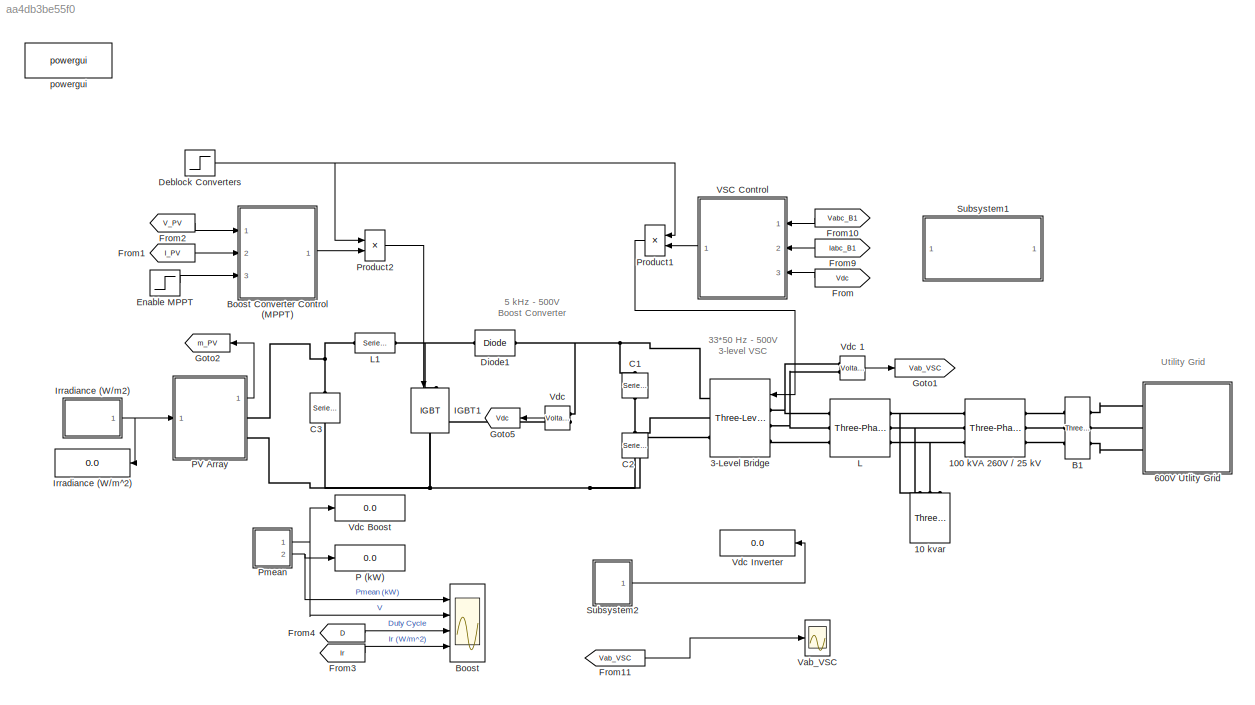
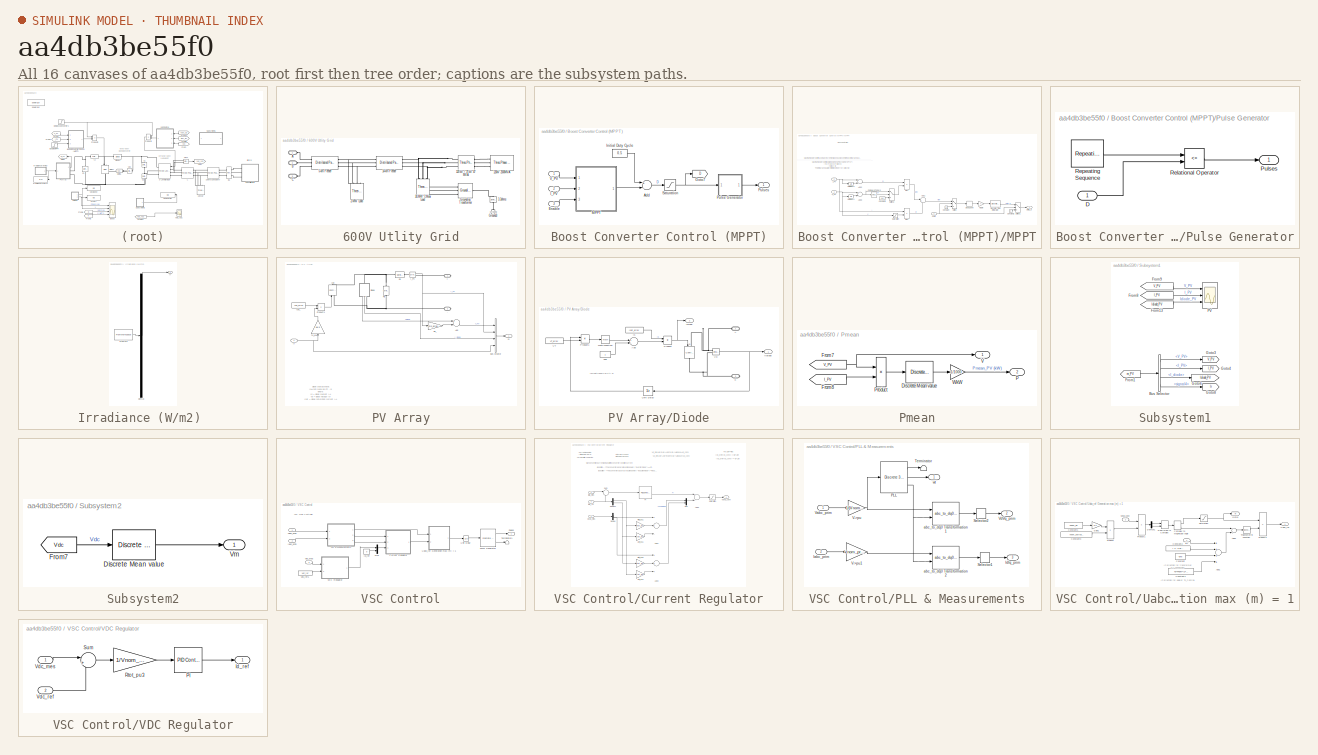
[diagram: thumbnail index - all 16 canvases of the model, root first then tree order]
MODEL slx_aa4db3be55f0
KIND model
CONFIG AbsTol = auto
CONFIG FixedStep = auto
CONFIG MaxStep = auto
CONFIG MinStep = auto
CONFIG PreLoadFcn = Ts_Power=1e-6\nTs_Control=100e-6
CONFIG RelTol = 1e-3
CONFIG SampleTimeConstraint = Unconstrained
CONFIG Solver = FixedStepDiscrete
CONFIG SolverMode = SingleTasking
CONFIG SolverName = FixedStepDiscrete
CONFIG StartTime = 0.0
CONFIG StopTime = 3
BLOCK [Reference] 10 kvar  REF=powerlib/Elements/Three-Phase
Series RLC Load
  ActivePower = 10e3/100
  AttributesFormatString = \n
  CapacitivePower = 10e3
  Configuration = Y (grounded)
  InductivePower = 0
  LConnTagsString = A|B|C
  LoadType = constant Z
  Measurements = None
  NominalFrequency = 60
  NominalVoltage = 260
  Ports = [0, 0, 0, 0, 0, 3]
  SourceBlock = powerlib/Elements/Three-Phase\nSeries RLC Load
  SourceType = Three-Phase Series RLC Load
BLOCK [Reference] 100 kVA 260V // 25 kV  REF=powerlib/Elements/Three-Phase
Transformer
(Two Windings)
  AttributesFormatString = \n
  BreakLoop = off
  CoreType = Three single-phase transformers
  DataFile = 'hysteresis'
  DataType = off
  Hysteresis = off
  InitialFluxes = [ 0.8 , -0.8 , 0.7 ]
  L0 = 0.5
  Lm = 500
  Measurements = None
  MoreParameters = off
  NominalPower = [100e3 , 60 ]
  Ports = [0, 0, 0, 0, 0, 3, 3]
  Rm = 500
  Saturation = [ 0,0 ; 0.0024,1.2 ; 1.0,1.52 ]
  SetInitialFlux = off
  SetSaturation = off
  SourceBlock = powerlib/Elements/Three-Phase\nTransformer\n(Two Windings)
  SourceType = Three-Phase Transformer (Two Windings)
  TransfoNumber = 0
  UNITS = pu
  Winding1 = [ 25e3 , 0.001 , 0.03 ]
  Winding1Connection = Yg
  Winding2 = [ 260 , 0.001 , 0.03 ]
  Winding2Connection = Delta (D1)
BLOCK [Reference] 3-Level Bridge  REF=powerlib/Power
Electronics/Three-Level Bridge
  Arms = 3
  AttributesFormatString = \n
  Device = IGBT / Diodes
  ForwardVoltages = [  0  0 ]
  Measurements = None
  Ports = [1, 0, 0, 0, 0, 3, 3]
  Ron = 0.2e-3
  SbubberCapacitance = inf
  SnubberResistance = 1e6
  SourceBlock = powerlib/Power\nElectronics/Three-Level Bridge
  SourceType = Three-Level Bridge
BLOCK [SubSystem] 600V Utlity Grid
  Ports = [0, 0, 0, 0, 0, 3]
  RequestExecContextInheritance = off
BLOCK [Reference] 600V Utlity Grid/120 kV // 25 kV 47 MVA  REF=powerlib/Elements/Three-Phase
Transformer
(Two Windings)
  AttributesFormatString = \n
  BreakLoop = off
  CoreType = Three single-phase transformers
  DataFile = 'basic_model'
  DataType = off
  Hysteresis = off
  InitialFluxes = [ 0.8 , -0.8 , 0.7 ]
  L0 = 0.5
  Lm = 500
  Measurements = None
  MoreParameters = off
  NominalPower = [47e6 60 ]
  Ports = [0, 0, 0, 0, 0, 3, 3]
  Rm = 500
  Saturation = [ 0,0  ;  0.005,1.2  ;  1.0,1.4 ]
  SetInitialFlux = off
  SetSaturation = off
  SourceBlock = powerlib/Elements/Three-Phase\nTransformer\n(Two Windings)
  SourceType = Three-Phase Transformer (Two Windings)
  TransfoNumber = 0
  UNITS = pu
  Winding1 = [ 120e3  0.08/30   0.08 ]
  Winding1Connection = Yg
  Winding2 = [ 25e3  0.08/30  0.08]
  Winding2Connection = Delta (D1)
BLOCK [Reference] 600V Utlity Grid/120kV 2500MVA  REF=powerlib/Electrical
Sources/Three-Phase Source
  BaseVoltage = 120e3
  BusType = swing
  Frequency = 60
  Inductance = 16.58e-3
  InternalConnection = Yg
  PhaseAngle = 0
  Ports = [0, 0, 0, 0, 0, 0, 3]
  Pref = 0
  Qmax = inf
  Qmin = -inf
  Qref = 0
  Resistance = 0.8929
  ShortCircuitLevel = 2500e6
  SourceBlock = powerlib/Electrical\nSources/Three-Phase Source
  SourceType = Three-Phase Source
  SpecifyImpedance = on
  Voltage = 120e3
  XRratio = 7
BLOCK [Reference] 600V Utlity Grid/14-km Feeder  REF=powerlib/Elements/Distributed Parameters Line
  Capacitance = [11.33e-009 5.01e-009]
  Frequency = 60
  I1 = ones(3,3)
  I2 = ones(3,3)
  Inductance = [1.05e-3 3.32e-3]
  Length = 14
  Measurements = None
  Phases = 3
  Ports = [0, 0, 0, 0, 0, 3, 3]
  Resistance = [0.1153 0.413]
  SourceBlock = powerlib/Elements/Distributed Parameters Line
  SourceType = Distributed Parameters Line
  V1 = ones(3,3)
  V2 = ones(3,3)
  nHarmo = 1
  x1 = [-5.8e-05 -2.66241288531843e-10 0 0;-5.7e-05 -2.65838779606365e-10 0 0;-5.6e-05 -2.65436232899268e-10 0 0;-5.5e-05 -2.65033648467762e-10 0 0;-5.4e-05 -2.64631026369064e-10 0 0;-5.3e-05 -2.64228366660395e-10 0 0;-5.2e-05 -2.63825669398983e-10 0 0;-5.1e-05 -2.6342293464206e-10 0 0;-5e-05 -2.63020162446862e-10 0 0;-4.9e-05 -2.62617352870634e-10 -3790.5008820905 -24060.9143986523;-4.8e-05 -2.622145059...<+3159ch>
  x2 = [-5.8e-05 -2.19441538908334e-10 0 0;-5.7e-05 -2.19014640734556e-10 0 0;-5.6e-05 -2.18587711433914e-10 0 0;-5.5e-05 -2.18160751067083e-10 0 0;-5.4e-05 -2.17733759694744e-10 0 0;-5.3e-05 -2.17306737377582e-10 0 0;-5.2e-05 -2.16879684176287e-10 0 0;-5.1e-05 -2.16452600151551e-10 0 0;-5e-05 -2.16025485364074e-10 0 0;-4.9e-05 -2.15598339874557e-10 -3379.33798532399 -24243.9018981772;-4.8e-05 -2.1517116...<+3159ch>
  x3 = [-5.8e-05 -2.83245009916326e-12 0 0;-5.7e-05 -2.83025796249545e-12 0 0;-5.6e-05 -2.82806542358487e-12 0 0;-5.5e-05 -2.82587248274312e-12 0 0;-5.4e-05 -2.82367914028187e-12 0 0;-5.3e-05 -2.82148539651284e-12 0 0;-5.2e-05 -2.81929125174781e-12 0 0;-5.1e-05 -2.81709670629862e-12 0 0;-5e-05 -2.81490176047716e-12 0 0;-4.9e-05 -2.81270641459538e-12 -23.610210034582 -155.666879550889;-4.8e-05 -2.81051066...<+3151ch>
  x4 = [-5.8e-05 1.99167322087456e-12 0 0;-5.7e-05 1.99117155346646e-12 0 0;-5.6e-05 1.99066960306846e-12 0 0;-5.5e-05 1.99016736975192e-12 0 0;-5.4e-05 1.98966485358822e-12 0 0;-5.3e-05 1.98916205464876e-12 0 0;-5.2e-05 1.98865897300502e-12 0 0;-5.1e-05 1.98815560872849e-12 0 0;-5e-05 1.9876519618907e-12 0 0;-4.9e-05 1.98714803256324e-12 -1.28892375628843 -2.16547060902882;-4.8e-05 1.98664382081773e-12 ...<+3102ch>
  x5 = 5.70973484498186e-05
BLOCK [Reference] 600V Utlity Grid/2-MW Load  REF=powerlib/Elements/Three-Phase
Parallel RLC Load
  ActivePower = 2e6
  AttributesFormatString = \n
  CapacitivePower = 0
  Configuration = Y (grounded)
  InductivePower = 0
  LConnTagsString = A|B|C
  LoadType = constant Z
  Measurements = None
  NominalFrequency = 60
  NominalVoltage = 25e3
  Ports = [0, 0, 0, 0, 0, 3]
  SourceBlock = powerlib/Elements/Three-Phase\nParallel RLC Load
  SourceType = Three-Phase Parallel RLC Load
BLOCK [Reference] 600V Utlity Grid/3.3ohms   REF=powerlib/Elements/Series RLC Branch
  BranchType = R
  Capacitance = []
  Inductance = []
  InitialCurrent = 0
  InitialVoltage = 0
  LConnTagsString = __new0
  Measurements = None
  Ports = [0, 0, 0, 0, 0, 1, 1]
  RConnTagsString = __new0
  Resistance = 3.3
  SetiL0 = off
  Setx0 = off
  SourceBlock = powerlib/Elements/Series RLC Branch
  SourceType = Series RLC Branch
BLOCK [Reference] 600V Utlity Grid/30-MW 2-Mvar Load  REF=powerlib/Elements/Three-Phase
Parallel RLC Load
  ActivePower = 30e6
  AttributesFormatString = \n
  CapacitivePower = 0
  Configuration = Y (grounded)
  InductivePower = 2e6
  LConnTagsString = A|B|C
  LoadType = constant Z
  Measurements = None
  NominalFrequency = 60
  NominalVoltage = 25e3
  Ports = [0, 0, 0, 0, 0, 3]
  SourceBlock = powerlib/Elements/Three-Phase\nParallel RLC Load
  SourceType = Three-Phase Parallel RLC Load
BLOCK [Reference] 600V Utlity Grid/5-km Feeder  REF=powerlib/Elements/Distributed Parameters Line
  Capacitance = [11.33e-009 5.01e-009]
  Frequency = 60
  I1 = ones(3,3)
  I2 = ones(3,3)
  Inductance = [1.05e-3 3.32e-3]
  Length = 5
  Measurements = None
  Phases = 3
  Ports = [0, 0, 0, 0, 0, 3, 3]
  Resistance = [0.1153 0.413]
  SourceBlock = powerlib/Elements/Distributed Parameters Line
  SourceType = Distributed Parameters Line
  V1 = ones(3,3)
  V2 = ones(3,3)
  nHarmo = 1
  x1 = [-2.1e-05 -2.5034227216243e-10 -3536.88834563299 -24100.782456778;-2e-05 -2.49941829422639e-10 -3527.80231357941 -24102.1141196103;-1.9e-05 -2.4954135116054e-10 -3518.71578014645 -24103.4423569946;-1.8e-05 -2.49140837433051e-10 -3509.6287466255 -24104.7671687422;-1.7e-05 -2.48740288297092e-10 -3500.54121430803 -24106.0885546649;-1.6e-05 -2.4833970380959e-10 -3491.45318448559 -24107.4065145747;-1.5...<+978ch>
  x2 = [-2.1e-05 -2.51338141059124e-10 -3536.31339561922 -24099.5847724471;-2e-05 -2.50933586634924e-10 -3527.22781512284 -24100.9162186135;-1.9e-05 -2.50528996547465e-10 -3518.14173332873 -24102.2442395021;-1.8e-05 -2.50124370854249e-10 -3509.05515152821 -24103.5688349243;-1.7e-05 -2.49719709612781e-10 -3499.9680710127 -24104.8900046919;-1.6e-05 -2.49315012880574e-10 -3490.88049307368 -24106.2077486169;...<+980ch>
  x3 = [-2.1e-05 -2.36505659627167e-12 -11.2236902755013 -79.1234381044686;-2e-05 -2.36496717365722e-12 -11.1938606452144 -79.1276637133157;-1.9e-05 -2.36487741492819e-12 -11.1640294240303 -79.1318780763571;-1.8e-05 -2.36478732009734e-12 -11.1341966161886 -79.1360811929938;-1.7e-05 -2.36469688917747e-12 -11.1043622259293 -79.1402730626285;-1.6e-05 -2.36460612218143e-12 -11.0745262574924 -79.1444536846655...<+981ch>
  x4 = [-2.1e-05 7.7440198490703e-13 -12.4922083172047 -78.9091123636771;-2e-05 7.7469853203757e-13 -12.4624593956743 -78.9138162077783;-1.9e-05 7.74994969066172e-13 -12.4327087029504 -78.9185088364664;-1.8e-05 7.75291295950704e-13 -12.4029562432614 -78.9231902490744;-1.7e-05 7.75587512649053e-13 -12.3732020208357 -78.9278604449369;-1.6e-05 7.7588361911912e-13 -12.3434460399021 -78.9325194233902;-1.5e-05...<+959ch>
  x5 = 2.03919101606495e-05
BLOCK [PMIOPort] 600V Utlity Grid/A
  Port = 1
  Side = Left
BLOCK [PMIOPort] 600V Utlity Grid/B
  Port = 2
  Side = Left
BLOCK [PMIOPort] 600V Utlity Grid/C
  Port = 3
  Side = Left
BLOCK [Reference] 600V Utlity Grid/Ground3  REF=powerlib/Elements/Ground
  AttributesFormatString = \n
  LConnTagsString = a
  Ports = [0, 0, 0, 0, 0, 1]
  SourceBlock = powerlib/Elements/Ground
  SourceType = Ground
BLOCK [Reference] 600V Utlity Grid/Grounding Transformer   REF=powerlib/Elements/Grounding
Transformer 
  MagnetizationBranch_SI = [1041.7 3.927e+005]
  MagnetizationBranch_pu = [500 500]
  Measurements = None
  NominalPower = [100e6   60]
  NominalVoltage = 25e3
  Ports = [0, 0, 0, 0, 0, 3, 1]
  SourceBlock = powerlib/Elements/Grounding\nTransformer
  SourceType = Grounding Transformer
  UNITS = pu
  ZeroSequenceImpedance_SI = [0.052083 589.05]
  ZeroSequenceImpedance_pu = [0.025 0.75]
BLOCK [Reference] B1  REF=powerlib/Measurements/Three-Phase
V-I Measurement
  CurrentMeasurement = yes
  Ipu = off
  LabelI = Iabc_B1
  LabelV = Vabc_B1
  OutputType = Magnitude
  PSBequivalent = 0
  Pbase = 100e6
  PhasorSimulation = off
  Ports = [0, 0, 0, 0, 0, 3, 3]
  SetLabelI = on
  SetLabelV = on
  SourceBlock = powerlib/Measurements/Three-Phase\nV-I Measurement
  SourceType = Three-Phase VI Measurement
  Vbase = 500e3
  VoltageMeasurement = phase-to-ground
  Vpu = off
  VpuLL = off
BLOCK [Scope] Boost
  DataFormat = StructureWithTime
  Decimation = 100
  Floating = off
  LimitDataPoints = off
  NumInputPorts = 4
  Ports = [4]
  SampleInput = on
  SampleTime = Ts_Control
  SaveName = ScopeData_Boost
  SaveToWorkspace = on
  TimeRange = 3
  YMax = 14~550~0.3~1000
  YMin = 2~325~0.075~200
  ZoomMode = yonly
BLOCK [SubSystem] Boost Converter Control (MPPT)
  Ports = [3, 1]
  RequestExecContextInheritance = off
BLOCK [Sum] Boost Converter Control (MPPT)/Add
  InputSameDT = off
  Inputs = +-
  OutDataTypeStr = Inherit: Inherit via internal rule
  Ports = [2, 1]
  SaturateOnIntegerOverflow = off
BLOCK [Inport] Boost Converter Control (MPPT)/Enable
  IconDisplay = Port number
  Port = 3
BLOCK [Goto] Boost Converter Control (MPPT)/Goto7
  GotoTag = D
  TagVisibility = global
BLOCK [Inport] Boost Converter Control (MPPT)/I_PV
  IconDisplay = Port number
  Port = 2
BLOCK [Constant] Boost Converter Control (MPPT)/Initial Duty Cycle
  Value = 0.5
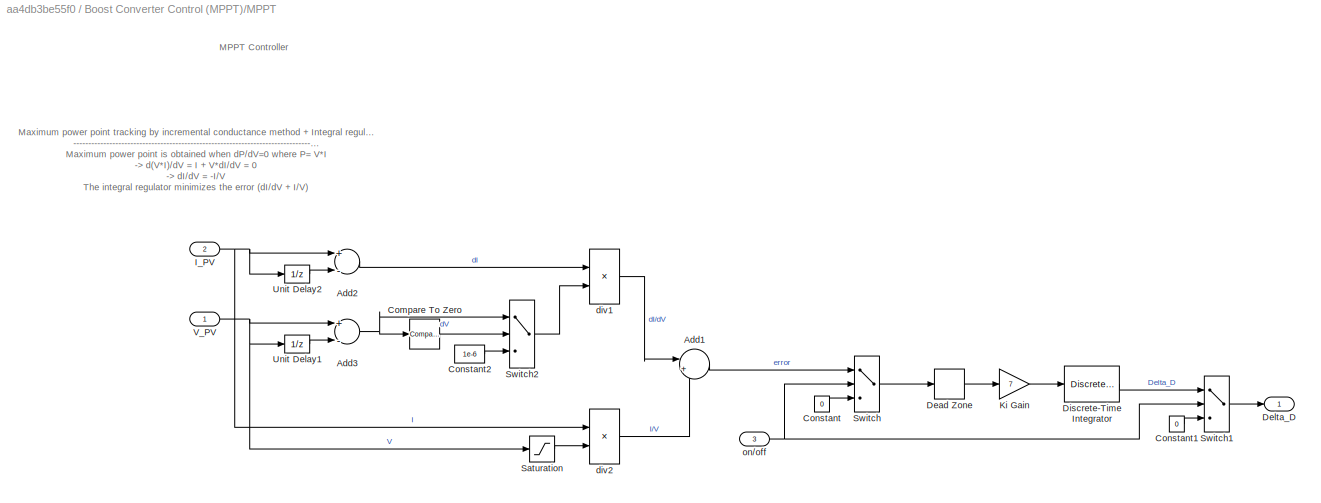
BLOCK [SubSystem] Boost Converter Control (MPPT)/MPPT
  Ports = [3, 1]
  RequestExecContextInheritance = off
BLOCK [Sum] Boost Converter Control (MPPT)/MPPT/Add1
  IconShape = round
  InputSameDT = off
  Inputs = |++
  OutDataTypeStr = Inherit: Inherit via internal rule
  Ports = [2, 1]
  SaturateOnIntegerOverflow = off
BLOCK [Sum] Boost Converter Control (MPPT)/MPPT/Add2
  InputSameDT = off
  Inputs = +-
  OutDataTypeStr = Inherit: Inherit via internal rule
  Ports = [2, 1]
  SaturateOnIntegerOverflow = off
BLOCK [Sum] Boost Converter Control (MPPT)/MPPT/Add3
  InputSameDT = off
  Inputs = +-
  OutDataTypeStr = Inherit: Inherit via internal rule
  Ports = [2, 1]
  SaturateOnIntegerOverflow = off
BLOCK [Reference] Boost Converter Control (MPPT)/MPPT/Compare To Zero  REF=simulink/Logic and Bit
Operations/Compare
To Zero
  OutDataTypeStr = uint8
  Ports = [1, 1]
  SourceBlock = simulink/Logic and Bit\nOperations/Compare\nTo Zero
  SourceType = Compare To Zero
  ZeroCross = on
  relop = ~=
BLOCK [Constant] Boost Converter Control (MPPT)/MPPT/Constant
  Value = 0
BLOCK [Constant] Boost Converter Control (MPPT)/MPPT/Constant1
  Value = 0
BLOCK [Constant] Boost Converter Control (MPPT)/MPPT/Constant2
  Value = 1e-6
BLOCK [DeadZone] Boost Converter Control (MPPT)/MPPT/Dead Zone
  LowerValue = -0.02
  UpperValue = +0.02
BLOCK [Outport] Boost Converter Control (MPPT)/MPPT/Delta_D
  IconDisplay = Port number
BLOCK [DiscreteIntegrator] Boost Converter Control (MPPT)/MPPT/Discrete-Time Integrator
  LimitOutput = on
  LowerSaturationLimit = -1
  Ports = [1, 1]
  SampleTime = Ts_Control
  UpperSaturationLimit = 1
  gainval = 1
BLOCK [Inport] Boost Converter Control (MPPT)/MPPT/I_PV
  IconDisplay = Port number
  Port = 2
BLOCK [Gain] Boost Converter Control (MPPT)/MPPT/Ki Gain
  Gain = 7
  OutDataTypeStr = Inherit: Inherit via internal rule
  ParamDataTypeStr = Inherit: Inherit via internal rule
  SaturateOnIntegerOverflow = off
BLOCK [Saturate] Boost Converter Control (MPPT)/MPPT/Saturation
  InputPortMap = u0
  LowerLimit = eps
  Ports = [1, 1]
  UpperLimit = inf
BLOCK [Switch] Boost Converter Control (MPPT)/MPPT/Switch
  InputSameDT = off
  SaturateOnIntegerOverflow = off
  Threshold = 0.5
BLOCK [Switch] Boost Converter Control (MPPT)/MPPT/Switch1
  InputSameDT = off
  SaturateOnIntegerOverflow = off
  Threshold = 0.5
BLOCK [Switch] Boost Converter Control (MPPT)/MPPT/Switch2
  Criteria = u2 ~= 0
  InputSameDT = off
  SaturateOnIntegerOverflow = off
BLOCK [UnitDelay] Boost Converter Control (MPPT)/MPPT/Unit Delay1
  InputProcessing = Elements as channels (sample based)
  SampleTime = Ts_Control
BLOCK [UnitDelay] Boost Converter Control (MPPT)/MPPT/Unit Delay2
  InputProcessing = Elements as channels (sample based)
  SampleTime = Ts_Control
BLOCK [Inport] Boost Converter Control (MPPT)/MPPT/V_PV
  IconDisplay = Port number
BLOCK [Product] Boost Converter Control (MPPT)/MPPT/div1
  InputSameDT = off
  Inputs = */
  OutDataTypeStr = Inherit: Inherit via internal rule
  Ports = [2, 1]
  SaturateOnIntegerOverflow = off
BLOCK [Product] Boost Converter Control (MPPT)/MPPT/div2
  InputSameDT = off
  Inputs = */
  OutDataTypeStr = Inherit: Inherit via internal rule
  Ports = [2, 1]
  SaturateOnIntegerOverflow = off
BLOCK [Inport] Boost Converter Control (MPPT)/MPPT/on//off
  IconDisplay = Port number
  Port = 3
BLOCK [SubSystem] Boost Converter Control (MPPT)/Pulse Generator
  Ports = [1, 1]
  RequestExecContextInheritance = off
BLOCK [Inport] Boost Converter Control (MPPT)/Pulse Generator/D
  IconDisplay = Port number
BLOCK [Outport] Boost Converter Control (MPPT)/Pulse Generator/Pulses
  IconDisplay = Port number
BLOCK [RelationalOperator] Boost Converter Control (MPPT)/Pulse Generator/Relational Operator
  InputSameDT = off
  Operator = <=
  OutDataTypeStr = boolean
  Ports = [2, 1]
BLOCK [Reference] Boost Converter Control (MPPT)/Pulse Generator/Repeating Sequence  REF=simulink/Sources/Repeating
Sequence
  Ports = [0, 1]
  SourceBlock = simulink/Sources/Repeating\nSequence
  SourceType = Repeating table
  rep_seq_t = [0  1/Freq]
  rep_seq_y = [0 1]
BLOCK [Outport] Boost Converter Control (MPPT)/Pulses
  IconDisplay = Port number
BLOCK [Saturate] Boost Converter Control (MPPT)/Saturation
  InputPortMap = u0
  LowerLimit = 0
  Ports = [1, 1]
  UpperLimit = 1
BLOCK [Inport] Boost Converter Control (MPPT)/V_PV
  IconDisplay = Port number
BLOCK [Reference] C1  REF=powerlib/Elements/Series RLC Branch
  AttributesFormatString = \n
  BranchType = C
  Capacitance = 12000e-06
  Inductance = 1.0
  InitialCurrent = 0
  InitialVoltage = 0
  LConnTagsString = __new0
  Measurements = None
  Ports = [0, 0, 0, 0, 0, 1, 1]
  RConnTagsString = __new0
  Resistance = 1.0
  SetiL0 = off
  Setx0 = off
  SourceBlock = powerlib/Elements/Series RLC Branch
  SourceType = Series RLC Branch
BLOCK [Reference] C2  REF=powerlib/Elements/Series RLC Branch
  AttributesFormatString = \n
  BranchType = C
  Capacitance = 12000e-06
  Inductance = 1.0
  InitialCurrent = 0
  InitialVoltage = 0
  LConnTagsString = __new0
  Measurements = None
  Ports = [0, 0, 0, 0, 0, 1, 1]
  RConnTagsString = __new0
  Resistance = 1.0
  SetiL0 = off
  Setx0 = off
  SourceBlock = powerlib/Elements/Series RLC Branch
  SourceType = Series RLC Branch
BLOCK [Reference] C3  REF=powerlib/Elements/Series RLC Branch
  AttributesFormatString = \n
  BranchType = C
  Capacitance = 100e-6
  Inductance = 1.0
  InitialCurrent = 0
  InitialVoltage = 0
  LConnTagsString = __new0
  Measurements = Branch voltage
  Ports = [0, 0, 0, 0, 0, 1, 1]
  RConnTagsString = __new0
  Resistance = 1.0
  SetiL0 = off
  Setx0 = off
  SourceBlock = powerlib/Elements/Series RLC Branch
  SourceType = Series RLC Branch
BLOCK [Step] Deblock Converters
  SampleTime = 0
  Time = 0.05
BLOCK [Reference] Diode1  REF=powerlib/Power
Electronics/Diode
  Cs = inf
  IC = 0
  Lon = 0
  Measurements = off
  Ports = [0, 0, 0, 0, 0, 1, 1]
  Ron = 1e-4
  Rs = inf
  SourceBlock = powerlib/Power\nElectronics/Diode
  SourceType = Diode
  UseSnubber = off
  Vf = 0
BLOCK [Step] Enable MPPT
  SampleTime = 0
  Time = 0.4
BLOCK [From] From
  GotoTag = Vdc
  TagVisibility = global
BLOCK [From] From1
  CloseFcn = tagdialog Close
  GotoTag = I_PV
  TagVisibility = global
BLOCK [From] From10
  CloseFcn = tagdialog Close
  GotoTag = Vabc_B1
  TagVisibility = global
BLOCK [From] From11
  CloseFcn = tagdialog Close
  GotoTag = Vab_VSC
  TagVisibility = global
BLOCK [From] From2
  CloseFcn = tagdialog Close
  GotoTag = V_PV
  TagVisibility = global
BLOCK [From] From3
  CloseFcn = tagdialog Close
  GotoTag = Ir
  TagVisibility = global
BLOCK [From] From4
  CloseFcn = tagdialog Close
  GotoTag = D
  TagVisibility = global
BLOCK [From] From9
  CloseFcn = tagdialog Close
  GotoTag = Iabc_B1
  TagVisibility = global
BLOCK [Goto] Goto1
  GotoTag = Vab_VSC
  TagVisibility = global
BLOCK [Goto] Goto2
  GotoTag = m_PV
  TagVisibility = global
BLOCK [Goto] Goto5
  GotoTag = Vdc
  TagVisibility = global
BLOCK [Reference] IGBT1  REF=powerlib/Power
Electronics/IGBT
  Cs = inf
  IC = 0
  Lon = 0
  Measurements = off
  Ports = [1, 0, 0, 0, 0, 1, 1]
  Ron = 0.001
  Rs = 1e5
  SourceBlock = powerlib/Power\nElectronics/IGBT
  SourceType = IGBT
  Tf = 0
  Tt = 0
  Vf = 0
BLOCK [SubSystem] Irradiance (W//m2) 
  ClipboardFcn = sigbuilder_block('clipboard');
  CloseFcn = sigbuilder_block('close');
  ContinueFcn = sigbuilder_block('continue')
  CopyFcn = sigbuilder_block('copy');
  DeleteFcn = sigbuilder_block('delete');
  LoadFcn = sigbuilder_block('load');
  MaskHideContents = on
  ModelCloseFcn = sigbuilder_block('modelClose');
  NameChangeFcn = sigbuilder_block('namechange');
  OpenFcn = sigbuilder_block('open',[9 136.5 954 513.75 ]);
  PauseFcn = sigbuilder_block('pause')
  Ports = [0, 1]
  PreSaveFcn = sigbuilder_block('preSave');
  RequestExecContextInheritance = off
  StartFcn = sigbuilder_block('start');
  StopFcn = sigbuilder_block('stop');
  Tag = STV Subsys
BLOCK [Demux] Irradiance (W//m2) /Demux
  Outputs = 1
  Ports = [1, 1]
  Tag = STV Demux
BLOCK [FromWorkspace] Irradiance (W//m2) /FromWs
  SampleTime = 0
  Tag = STV FromWs
  VariableName = tuvar
  ZeroCross = on
BLOCK [Outport] Irradiance (W//m2) /Ir
  IconDisplay = Port number
  Tag = STV Outport
BLOCK [Display] Irradiance (W//m^2)
  Decimation = 1000
  Format = bank
  Ports = [1]
BLOCK [Reference] L  REF=powerlib/Elements/Three-Phase
Series RLC Branch
  AttributesFormatString = \n
  BranchType = RL
  Capacitance = inf
  Inductance = 250e-6
  LConnTagsString = A|B|C
  Measurements = None
  Ports = [0, 0, 0, 0, 0, 3, 3]
  RConnTagsString = A|B|C
  Resistance = 2e-3
  SourceBlock = powerlib/Elements/Three-Phase\nSeries RLC Branch
  SourceType = Three-Phase Series RLC Branch
BLOCK [Reference] L1  REF=powerlib/Elements/Series RLC Branch
  BranchType = RL
  Capacitance = 1e-6
  Inductance = 5e-3
  InitialCurrent = 0
  InitialVoltage = 0
  LConnTagsString = __new0
  Measurements = None
  Ports = [0, 0, 0, 0, 0, 1, 1]
  RConnTagsString = __new0
  Resistance = 0.005
  SetiL0 = off
  Setx0 = off
  SourceBlock = powerlib/Elements/Series RLC Branch
  SourceType = Series RLC Branch
BLOCK [Display] P (kW) 
  Decimation = 2000
  Format = bank
  Ports = [1]
BLOCK [SubSystem] PV Array
  Ports = [1, 1, 0, 0, 0, 0, 2]
  RequestExecContextInheritance = off
BLOCK [PMIOPort] PV Array/+
  Port = 1
  Side = Right
BLOCK [PMIOPort] PV Array/-
  Port = 2
  Side = Right
BLOCK [Sum] PV Array/Add
  InputSameDT = off
  Inputs = +-
  OutDataTypeStr = Inherit: Inherit via internal rule
  Ports = [2, 1]
  SaturateOnIntegerOverflow = off
BLOCK [BusCreator] PV Array/Bus Creator
  DisplayOption = bar
  Ports = [4, 1]
BLOCK [SubSystem] PV Array/Diode
  Ports = [0, 2, 0, 0, 0, 1, 1]
  RequestExecContextInheritance = off
BLOCK [PMIOPort] PV Array/Diode/A
  Port = 1
  Side = Left
BLOCK [Sum] PV Array/Diode/Add
  InputSameDT = off
  Inputs = +-
  OutDataTypeStr = Inherit: Inherit via internal rule
  Ports = [2, 1]
  SaturateOnIntegerOverflow = off
BLOCK [Reference] PV Array/Diode/Id  REF=powerlib/Electrical
Sources/Controlled Current Source
  Amplitude = 0
  Frequency = 0
  Initialize = on
  Measurements = None
  Phase = 0
  Ports = [1, 0, 0, 0, 0, 1, 1]
  SourceBlock = powerlib/Electrical\nSources/Controlled Current Source
  SourceType = Controlled Current Source
  Source_Type = AC
BLOCK [Outport] PV Array/Diode/Idiode
  IconDisplay = Port number
  Port = 2
BLOCK [Constant] PV Array/Diode/Is
  Value = Isat_array
BLOCK [PMIOPort] PV Array/Diode/K
  Port = 2
  Side = Right
BLOCK [Math] PV Array/Diode/Math Function
  Ports = [1, 1]
BLOCK [Product] PV Array/Diode/Product
  InputSameDT = off
  OutDataTypeStr = Inherit: Inherit via internal rule
  Ports = [2, 1]
  SaturateOnIntegerOverflow = off
BLOCK [Product] PV Array/Diode/Product1
  InputSameDT = off
  Inputs = */
  OutDataTypeStr = Inherit: Inherit via internal rule
  Ports = [2, 1]
  SaturateOnIntegerOverflow = off
BLOCK [UnitDelay] PV Array/Diode/Unit Delay
  InputProcessing = Elements as channels (sample based)
  SampleTime = Ts
BLOCK [Constant] PV Array/Diode/VT
  Value = VT_array
BLOCK [Reference] PV Array/Diode/Vd  REF=powerlib/Measurements/Voltage Measurement
  OutputType = Complex
  PSBequivalent = 0
  PhasorSimulation = off
  Ports = [0, 1, 0, 0, 0, 2]
  SourceBlock = powerlib/Measurements/Voltage Measurement
  SourceType = Voltage Measurement
BLOCK [Outport] PV Array/Diode/Vdiode
  IconDisplay = Port number
BLOCK [Constant] PV Array/Diode/one
BLOCK [Reference] PV Array/I_PV  REF=powerlib/Measurements/Current Measurement
  OutputType = Complex
  PSBequivalent = 0
  PhasorSimulation = off
  Ports = [0, 1, 0, 0, 0, 1, 1]
  SourceBlock = powerlib/Measurements/Current Measurement
  SourceType = Current Measurement
BLOCK [Reference] PV Array/Iph  REF=powerlib/Electrical
Sources/Controlled Current Source
  Amplitude = 0
  Frequency = 0
  Initialize = on
  Measurements = None
  Phase = 0
  Ports = [1, 0, 0, 0, 0, 1, 1]
  SourceBlock = powerlib/Electrical\nSources/Controlled Current Source
  SourceType = Controlled Current Source
  Source_Type = AC
BLOCK [Constant] PV Array/Iph_
  Value = Iph_array
BLOCK [Inport] PV Array/Ir
  IconDisplay = Port number
BLOCK [Product] PV Array/Product1
  InputSameDT = off
  Inputs = **
  OutDataTypeStr = Inherit: Inherit via internal rule
  Ports = [2, 1]
  SaturateOnIntegerOverflow = off
BLOCK [Reference] PV Array/Rp  REF=powerlib/Elements/Series RLC Branch
  BranchType = R
  Capacitance = 1e-6
  Inductance = 1e-3
  InitialCurrent = 0
  InitialVoltage = 0
  LConnTagsString = __new0
  Measurements = Branch current
  Ports = [0, 0, 0, 0, 0, 1, 1]
  RConnTagsString = __new0
  Resistance = Rp_array
  SetiL0 = off
  Setx0 = off
  SourceBlock = powerlib/Elements/Series RLC Branch
  SourceType = Series RLC Branch
BLOCK [Reference] PV Array/Rs  REF=powerlib/Elements/Series RLC Branch
  BranchType = R
  Capacitance = 1e-6
  Inductance = 1e-3
  InitialCurrent = 0
  InitialVoltage = 0
  LConnTagsString = __new0
  Measurements = None
  Ports = [0, 0, 0, 0, 0, 1, 1]
  RConnTagsString = __new0
  Resistance = Rs_array
  SetiL0 = off
  Setx0 = off
  SourceBlock = powerlib/Elements/Series RLC Branch
  SourceType = Series RLC Branch
BLOCK [Gain] PV Array/Rs_
  Gain = Rs_array
  OutDataTypeStr = Inherit: Inherit via internal rule
  ParamDataTypeStr = Inherit: Inherit via internal rule
  SaturateOnIntegerOverflow = off
BLOCK [Outport] PV Array/m
  IconDisplay = Port number
BLOCK [Gain] PV Array/t0_kW
  Gain = 1e-3
  OutDataTypeStr = Inherit: Inherit via internal rule
  ParamDataTypeStr = Inherit: Inherit via internal rule
  SaturateOnIntegerOverflow = off
BLOCK [SubSystem] Pmean
  Ports = [0, 2]
  RequestExecContextInheritance = off
BLOCK [Reference] Pmean/Discrete Mean value  REF=powerlib_extras/Discrete
Measurements/Discrete 
Mean value
  Freq = 60
  Ports = [1, 1]
  SourceBlock = powerlib_extras/Discrete\nMeasurements/Discrete \nMean value
  SourceType = Discrete Mean value
  Ts = Ts_Control
  Vinit = 0
BLOCK [From] Pmean/From7
  GotoTag = V_PV
  TagVisibility = global
BLOCK [From] Pmean/From8
  GotoTag = I_PV
  TagVisibility = global
BLOCK [Outport] Pmean/P
  IconDisplay = Port number
  Port = 2
BLOCK [Product] Pmean/Product
  InputSameDT = off
  OutDataTypeStr = Inherit: Inherit via internal rule
  Ports = [2, 1]
  SaturateOnIntegerOverflow = off
BLOCK [Outport] Pmean/V
  IconDisplay = Port number
BLOCK [Gain] Pmean/WkW
  Gain = 1/1000
  OutDataTypeStr = Inherit: Inherit via internal rule
  ParamDataTypeStr = Inherit: Inherit via internal rule
  SaturateOnIntegerOverflow = off
BLOCK [Product] Product1
  InputSameDT = off
  OutDataTypeStr = Inherit: Inherit via internal rule
  Ports = [2, 1]
  SaturateOnIntegerOverflow = off
BLOCK [Product] Product2
  InputSameDT = off
  OutDataTypeStr = Inherit: Inherit via internal rule
  Ports = [2, 1]
  SaturateOnIntegerOverflow = off
BLOCK [SubSystem] Subsystem1
  Ports = []
  RequestExecContextInheritance = off
BLOCK [BusSelector] Subsystem1/Bus Selector
  OutputSignals = V_PV,I_PV,I_diode,signal4
  Ports = [1, 4]
BLOCK [From] Subsystem1/From1
  GotoTag = m_PV
  TagVisibility = global
BLOCK [From] Subsystem1/From13
  GotoTag = Idiode_PV
  TagVisibility = global
BLOCK [From] Subsystem1/From8
  GotoTag = I_PV
  TagVisibility = global
BLOCK [From] Subsystem1/From9
  GotoTag = V_PV
  TagVisibility = global
BLOCK [Goto] Subsystem1/Goto3
  GotoTag = V_PV
  TagVisibility = global
BLOCK [Goto] Subsystem1/Goto4
  GotoTag = I_PV
  TagVisibility = global
BLOCK [Goto] Subsystem1/Goto6
  GotoTag = Idiode_PV
  TagVisibility = global
BLOCK [Goto] Subsystem1/Goto8
  GotoTag = Ir
  TagVisibility = global
BLOCK [Scope] Subsystem1/PV
  DataFormat = StructureWithTime
  Decimation = 100
  Floating = off
  LimitDataPoints = off
  NumInputPorts = 3
  Ports = [3]
  SampleTime = 0
  SaveName = ScopeData2
  TimeRange = 2
  YMax = 280~400~50
  YMin = 240~0~0
  ZoomMode = yonly
BLOCK [SubSystem] Subsystem2
  Ports = [0, 1]
  RequestExecContextInheritance = off
BLOCK [Reference] Subsystem2/Discrete Mean value  REF=powerlib_extras/Discrete
Measurements/Discrete 
Mean value
  Freq = 60
  Ports = [1, 1]
  SourceBlock = powerlib_extras/Discrete\nMeasurements/Discrete \nMean value
  SourceType = Discrete Mean value
  Ts = Ts_Control
  Vinit = 0
BLOCK [From] Subsystem2/From7
  CloseFcn = tagdialog Close
  GotoTag = Vdc
  TagVisibility = global
BLOCK [Outport] Subsystem2/Vm
  IconDisplay = Port number
BLOCK [SubSystem] VSC Control
  Ports = [3, 1]
  RequestExecContextInheritance = off
BLOCK [SubSystem] VSC Control/Current Regulator
  Ports = [3, 1]
  RequestExecContextInheritance = off
BLOCK [Sum] VSC Control/Current Regulator/Add1
  InputSameDT = off
  Inputs = ++-
  OutDataTypeStr = Inherit: Inherit via internal rule
  Ports = [3, 1]
  SaturateOnIntegerOverflow = off
BLOCK [Sum] VSC Control/Current Regulator/Add2
  InputSameDT = off
  OutDataTypeStr = Inherit: Inherit via internal rule
  Ports = [2, 1]
  SaturateOnIntegerOverflow = off
BLOCK [Sum] VSC Control/Current Regulator/Add3
  InputSameDT = off
  Inputs = +++
  OutDataTypeStr = Inherit: Inherit via internal rule
  Ports = [3, 1]
  SaturateOnIntegerOverflow = off
BLOCK [Demux] VSC Control/Current Regulator/Demux
  DisplayOption = bar
  Outputs = 2
  Ports = [1, 2]
BLOCK [Demux] VSC Control/Current Regulator/Demux1
  DisplayOption = bar
  Outputs = 2
  Ports = [1, 2]
BLOCK [Inport] VSC Control/Current Regulator/IdIq_mes
  IconDisplay = Port number
  Port = 2
  PortDimensions = 2
BLOCK [Inport] VSC Control/Current Regulator/IdIq_ref
  IconDisplay = Port number
  Port = 3
  PortDimensions = 2
BLOCK [Gain] VSC Control/Current Regulator/Ltot_pu1
  Gain = Ltot_pu
BLOCK [Gain] VSC Control/Current Regulator/Ltot_pu2
  Gain = Ltot_pu
BLOCK [Mux] VSC Control/Current Regulator/Mux
  DisplayOption = bar
  Inputs = 2
  Ports = [2, 1]
BLOCK [Reference] VSC Control/Current Regulator/PI  REF=simulink/Continuous/PID Controller
  AntiWindupMode = none
  Controller = PI
  ControllerParametersSource = internal
  D = 0
  DGainOutDataTypeStr = Inherit: Inherit via internal rule
  DOutDataTypeStr = Inherit: Inherit via internal rule
  DOutMax = []
  DOutMin = []
  DParamDataTypeStr = Inherit: Inherit via internal rule
  DParamMax = []
  DParamMin = []
  DProdOutDataTypeStr = Inherit: Inherit via internal rule
  DifferentiatorICPrevScaledInput = 0
  DifferentiatorOutDataTypeStr = Inherit: Inherit via internal rule
  DifferentiatorOutMax = []
  DifferentiatorOutMin = []
  ExternalReset = none
  FilterContinuousStateAttributes = ''
  FilterMethod = Forward Euler
  FilterOutDataTypeStr = Inherit: Inherit via internal rule
  FilterOutMax = []
  FilterOutMin = []
  FilterRTWStateStorageClass = Auto
  FilterStateMustResolveToSignalObject = off
  Form = Parallel
  I = Ki_Ireg
  IGainOutDataTypeStr = Inherit: Inherit via internal rule
  IOutDataTypeStr = Inherit: Inherit via internal rule
  IOutMax = []
  IOutMin = []
  IParamDataTypeStr = Inherit: Inherit via internal rule
  IParamMax = []
  IParamMin = []
  IProdOutDataTypeStr = Inherit: Inherit via internal rule
  IgnoreLimit = off
  InitialConditionForFilter = 0
  InitialConditionForIntegrator = 0
  InitialConditionSource = internal
  IntegratorContinuousStateAttributes = ''
  IntegratorMethod = Forward Euler
  IntegratorOutDataTypeStr = Inherit: Inherit via internal rule
  IntegratorOutMax = []
  IntegratorOutMin = []
  IntegratorRTWStateStorageClass = Auto
  IntegratorStateMustResolveToSignalObject = off
  Kb = 1
  KbOutDataTypeStr = Inherit: Inherit via internal rule
  KbOutMax = []
  KbOutMin = []
  KbParamDataTypeStr = Inherit: Inherit via internal rule
  KbParamMax = []
  KbParamMin = []
  Kt = 1
  KtOutDataTypeStr = Inherit: Inherit via internal rule
  KtOutMax = []
  KtOutMin = []
  KtParamDataTypeStr = Inherit: Inherit via internal rule
  KtParamMax = []
  KtParamMin = []
  LimitOutput = on
  LinearizeAsGain = off
  LockScale = off
  LowerSaturationLimit = -2
  N = 100
  NGainOutDataTypeStr = Inherit: Inherit via internal rule
  NOutDataTypeStr = Inherit: Inherit via internal rule
  NOutMax = []
  NOutMin = []
  NParamDataTypeStr = Inherit: Inherit via internal rule
  NParamMax = []
  NParamMin = []
  NProdOutDataTypeStr = Inherit: Inherit via internal rule
  P = Kp_Ireg
  PGainOutDataTypeStr = Inherit: Inherit via internal rule
  POutDataTypeStr = Inherit: Inherit via internal rule
  POutMax = []
  POutMin = []
  PParamDataTypeStr = Inherit: Inherit via internal rule
  PParamMax = []
  PParamMin = []
  PProdOutDataTypeStr = Inherit: Inherit via internal rule
  Ports = [1, 1]
  RndMeth = Floor
  SampleTime = Ts
  SaturateOnIntegerOverflow = off
  SaturationOutDataTypeStr = Inherit: Same as input
  SaturationOutMax = []
  SaturationOutMin = []
  SourceBlock = simulink/Continuous/PID Controller
  SourceType = PID 1dof
  SumAccumDataTypeStr = Inherit: Inherit via internal rule
  SumDAccumDataTypeStr = Inherit: Inherit via internal rule
  SumDOutDataTypeStr = Inherit: Inherit via internal rule
  SumDOutMax = []
  SumDOutMin = []
  SumI1AccumDataTypeStr = Inherit: Inherit via internal rule
  SumI1OutDataTypeStr = Inherit: Inherit via internal rule
  SumI1OutMax = []
  SumI1OutMin = []
  SumI2AccumDataTypeStr = Inherit: Inherit via internal rule
  SumI2OutDataTypeStr = Inherit: Inherit via internal rule
  SumI2OutMax = []
  SumI2OutMin = []
  SumI3AccumDataTypeStr = Inherit: Inherit via internal rule
  SumI3OutDataTypeStr = Inherit: Inherit via internal rule
  SumI3OutMax = []
  SumI3OutMin = []
  SumOutDataTypeStr = Inherit: Inherit via internal rule
  SumOutMax = []
  SumOutMin = []
  TimeDomain = Discrete-time
  TrackingMode = off
  UpperSaturationLimit = 2
  UseFilter = on
  ZeroCross = on
BLOCK [Gain] VSC Control/Current Regulator/Rtot_pu1
  Gain = Rtot_pu
BLOCK [Gain] VSC Control/Current Regulator/Rtot_pu5
  Gain = Rtot_pu
BLOCK [Saturate] VSC Control/Current Regulator/Saturation
  InputPortMap = u0
  LowerLimit = -2
  Ports = [1, 1]
  UpperLimit = 2
BLOCK [Sum] VSC Control/Current Regulator/Sum
  IconShape = round
  InputSameDT = off
  Inputs = |-+
  OutDataTypeStr = Inherit: Inherit via internal rule
  Ports = [2, 1]
  SaturateOnIntegerOverflow = off
BLOCK [Outport] VSC Control/Current Regulator/VdVq_conv
  IconDisplay = Port number
BLOCK [Inport] VSC Control/Current Regulator/VdVq_mes
  IconDisplay = Port number
  PortDimensions = 2
BLOCK [Inport] VSC Control/Iabc_prim
  IconDisplay = Port number
  Port = 2
  PortDimensions = 3
BLOCK [Constant] VSC Control/Iq_ref
  Value = 0
BLOCK [Mux] VSC Control/Mux
  DisplayOption = bar
  Inputs = 2
  Ports = [2, 1]
BLOCK [SubSystem] VSC Control/PLL & Measurements
  Ports = [2, 3]
  RequestExecContextInheritance = off
BLOCK [Inport] VSC Control/PLL & Measurements/Iabc_prim
  IconDisplay = Port number
  Port = 2
BLOCK [Outport] VSC Control/PLL & Measurements/IdIq_prim
  IconDisplay = Port number
  Port = 3
BLOCK [Reference] VSC Control/PLL & Measurements/PLL  REF=powerlib_extras/Discrete 
Control Blocks/Discrete
3-phase PLL
  AGC = off
  Fmin = 45
  ParK = [60 1400]
  Par_Init = [-0.57  Fnom]
  Ports = [1, 3]
  SourceBlock = powerlib_extras/Discrete \nControl Blocks/Discrete\n3-phase PLL
  SourceType = Discrete 3-phase PLL
  Ts = Ts
BLOCK [Selector] VSC Control/PLL & Measurements/Selector1
  Indices = [1 2]
  InputPortWidth = 3
  Ports = [1, 1]
BLOCK [Selector] VSC Control/PLL & Measurements/Selector2
  Indices = [1 2]
  InputPortWidth = 3
  Ports = [1, 1]
BLOCK [Terminator] VSC Control/PLL & Measurements/Terminator
BLOCK [Gain] VSC Control/PLL & Measurements/V->pu
  Gain = 1/(Vnom_prim*sqrt(2)/sqrt(3))
BLOCK [Gain] VSC Control/PLL & Measurements/V->pu1
  Gain = Vnom_prim*sqrt(3)/Pnom/sqrt(2)
BLOCK [Inport] VSC Control/PLL & Measurements/Vabc_prim
  IconDisplay = Port number
BLOCK [Outport] VSC Control/PLL & Measurements/VdVq_prim
  IconDisplay = Port number
  Port = 2
BLOCK [Reference] VSC Control/PLL & Measurements/abc_to_dq0 Transformation1  REF=powerlib_extras/Measurements/abc_to_dq0
Transformation
  Ports = [2, 1]
  SourceBlock = powerlib_extras/Measurements/abc_to_dq0\nTransformation
  SourceType = abc to dq0 Transformation
BLOCK [Reference] VSC Control/PLL & Measurements/abc_to_dq0 Transformation2  REF=powerlib_extras/Measurements/abc_to_dq0
Transformation
  Ports = [2, 1]
  SourceBlock = powerlib_extras/Measurements/abc_to_dq0\nTransformation
  SourceType = abc to dq0 Transformation
BLOCK [Outport] VSC Control/PLL & Measurements/wt
  IconDisplay = Port number
BLOCK [Reference] VSC Control/PWM Generator  REF=powerlib_extras/Discrete 
Control Blocks/Discrete 3-phase
PWM Generator
  Fc = 33*60
  Freq = 60
  ModulatingSignals = off
  ModulatorMode = Un-synchronized
  ModulatorType = 3-level
  Phase = 0
  Ports = [1, 2]
  SourceBlock = powerlib_extras/Discrete \nControl Blocks/Discrete 3-phase\nPWM Generator
  SourceType = Discrete 3-phase PWM Generator (2- or 3-level)
  Ts = Ts_Power
  m = 0.2
  nF = 18
BLOCK [Outport] VSC Control/Pulses
  IconDisplay = Port number
BLOCK [Terminator] VSC Control/Terminator1
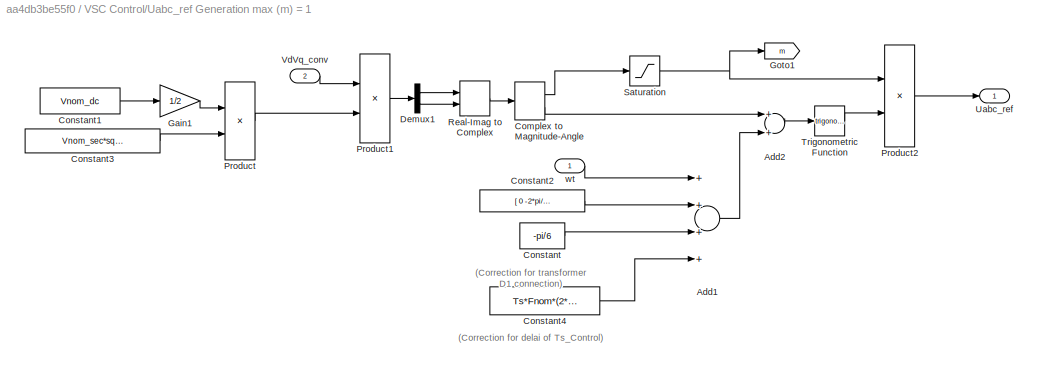
BLOCK [SubSystem] VSC Control/Uabc_ref Generation max (m) = 1
  Ports = [2, 1]
  RequestExecContextInheritance = off
BLOCK [Sum] VSC Control/Uabc_ref Generation max (m) = 1/Add1
  InputSameDT = off
  Inputs = ++++
  OutDataTypeStr = Inherit: Inherit via internal rule
  Ports = [4, 1]
  SaturateOnIntegerOverflow = off
BLOCK [Sum] VSC Control/Uabc_ref Generation max (m) = 1/Add2
  InputSameDT = off
  OutDataTypeStr = Inherit: Inherit via internal rule
  Ports = [2, 1]
  SaturateOnIntegerOverflow = off
BLOCK [ComplexToMagnitudeAngle] VSC Control/Uabc_ref Generation max (m) = 1/Complex to Magnitude-Angle
  Ports = [1, 2]
BLOCK [Constant] VSC Control/Uabc_ref Generation max (m) = 1/Constant
  Value = -pi/6
BLOCK [Constant] VSC Control/Uabc_ref Generation max (m) = 1/Constant1
  Value = Vnom_dc
BLOCK [Constant] VSC Control/Uabc_ref Generation max (m) = 1/Constant2
  Value = [ 0  -2*pi/3  2*pi/3  ]
BLOCK [Constant] VSC Control/Uabc_ref Generation max (m) = 1/Constant3
  Value = Vnom_sec*sqrt(2)/sqrt(3)
BLOCK [Constant] VSC Control/Uabc_ref Generation max (m) = 1/Constant4
  Value = Ts*Fnom*(2*pi)
BLOCK [Demux] VSC Control/Uabc_ref Generation max (m) = 1/Demux1
  DisplayOption = bar
  Outputs = 2
  Ports = [1, 2]
BLOCK [Gain] VSC Control/Uabc_ref Generation max (m) = 1/Gain1
  Gain = 1/2
  OutDataTypeStr = Inherit: Inherit via internal rule
  ParamDataTypeStr = Inherit: Inherit via internal rule
  SaturateOnIntegerOverflow = off
BLOCK [Goto] VSC Control/Uabc_ref Generation max (m) = 1/Goto1
  GotoTag = m
  TagVisibility = global
BLOCK [Product] VSC Control/Uabc_ref Generation max (m) = 1/Product
  InputSameDT = off
  Inputs = */
  OutDataTypeStr = Inherit: Inherit via internal rule
  Ports = [2, 1]
  SaturateOnIntegerOverflow = off
BLOCK [Product] VSC Control/Uabc_ref Generation max (m) = 1/Product1
  InputSameDT = off
  Inputs = */
  OutDataTypeStr = Inherit: Inherit via internal rule
  Ports = [2, 1]
  SaturateOnIntegerOverflow = off
BLOCK [Product] VSC Control/Uabc_ref Generation max (m) = 1/Product2
  InputSameDT = off
  Inputs = **
  OutDataTypeStr = Inherit: Inherit via internal rule
  Ports = [2, 1]
  SaturateOnIntegerOverflow = off
BLOCK [RealImagToComplex] VSC Control/Uabc_ref Generation max (m) = 1/Real-Imag to Complex
  Ports = [2, 1]
BLOCK [Saturate] VSC Control/Uabc_ref Generation max (m) = 1/Saturation
  InputPortMap = u0
  LowerLimit = 0
  Ports = [1, 1]
  UpperLimit = 1
BLOCK [Trigonometry] VSC Control/Uabc_ref Generation max (m) = 1/Trigonometric Function
  Ports = [1, 1]
BLOCK [Outport] VSC Control/Uabc_ref Generation max (m) = 1/Uabc_ref
  IconDisplay = Port number
BLOCK [Inport] VSC Control/Uabc_ref Generation max (m) = 1/VdVq_conv
  IconDisplay = Port number
  Port = 2
BLOCK [Inport] VSC Control/Uabc_ref Generation max (m) = 1/wt
  IconDisplay = Port number
BLOCK [UnitDelay] VSC Control/Unit Delay
  InputProcessing = Elements as channels (sample based)
  SampleTime = Ts_Control
BLOCK [SubSystem] VSC Control/VDC Regulator
  Ports = [2, 1]
  RequestExecContextInheritance = off
BLOCK [Outport] VSC Control/VDC Regulator/Id_ref
  IconDisplay = Port number
  InitialOutput = 0
  SampleTime = Ts
BLOCK [Reference] VSC Control/VDC Regulator/PI  REF=simulink/Continuous/PID Controller
  AntiWindupMode = none
  Controller = PI
  ControllerParametersSource = internal
  D = 0
  DGainOutDataTypeStr = Inherit: Inherit via internal rule
  DOutDataTypeStr = Inherit: Inherit via internal rule
  DOutMax = []
  DOutMin = []
  DParamDataTypeStr = Inherit: Inherit via internal rule
  DParamMax = []
  DParamMin = []
  DProdOutDataTypeStr = Inherit: Inherit via internal rule
  DifferentiatorICPrevScaledInput = 0
  DifferentiatorOutDataTypeStr = Inherit: Inherit via internal rule
  DifferentiatorOutMax = []
  DifferentiatorOutMin = []
  ExternalReset = none
  FilterContinuousStateAttributes = ''
  FilterMethod = Forward Euler
  FilterOutDataTypeStr = Inherit: Inherit via internal rule
  FilterOutMax = []
  FilterOutMin = []
  FilterRTWStateStorageClass = Auto
  FilterStateMustResolveToSignalObject = off
  Form = Parallel
  I = Ki_VDCreg
  IGainOutDataTypeStr = Inherit: Inherit via internal rule
  IOutDataTypeStr = Inherit: Inherit via internal rule
  IOutMax = []
  IOutMin = []
  IParamDataTypeStr = Inherit: Inherit via internal rule
  IParamMax = []
  IParamMin = []
  IProdOutDataTypeStr = Inherit: Inherit via internal rule
  IgnoreLimit = off
  InitialConditionForFilter = 0
  InitialConditionForIntegrator = 0
  InitialConditionSource = internal
  IntegratorContinuousStateAttributes = ''
  IntegratorMethod = Trapezoidal
  IntegratorOutDataTypeStr = Inherit: Inherit via internal rule
  IntegratorOutMax = []
  IntegratorOutMin = []
  IntegratorRTWStateStorageClass = Auto
  IntegratorStateMustResolveToSignalObject = off
  Kb = 1
  KbOutDataTypeStr = Inherit: Inherit via internal rule
  KbOutMax = []
  KbOutMin = []
  KbParamDataTypeStr = Inherit: Inherit via internal rule
  KbParamMax = []
  KbParamMin = []
  Kt = 1
  KtOutDataTypeStr = Inherit: Inherit via internal rule
  KtOutMax = []
  KtOutMin = []
  KtParamDataTypeStr = Inherit: Inherit via internal rule
  KtParamMax = []
  KtParamMin = []
  LimitOutput = on
  LinearizeAsGain = off
  LockScale = off
  LowerSaturationLimit = -1.5
  N = 100
  NGainOutDataTypeStr = Inherit: Inherit via internal rule
  NOutDataTypeStr = Inherit: Inherit via internal rule
  NOutMax = []
  NOutMin = []
  NParamDataTypeStr = Inherit: Inherit via internal rule
  NParamMax = []
  NParamMin = []
  NProdOutDataTypeStr = Inherit: Inherit via internal rule
  P = Kp_VDCreg
  PGainOutDataTypeStr = Inherit: Inherit via internal rule
  POutDataTypeStr = Inherit: Inherit via internal rule
  POutMax = []
  POutMin = []
  PParamDataTypeStr = Inherit: Inherit via internal rule
  PParamMax = []
  PParamMin = []
  PProdOutDataTypeStr = Inherit: Inherit via internal rule
  Ports = [1, 1]
  RndMeth = Floor
  SampleTime = Ts
  SaturateOnIntegerOverflow = off
  SaturationOutDataTypeStr = Inherit: Same as input
  SaturationOutMax = []
  SaturationOutMin = []
  SourceBlock = simulink/Continuous/PID Controller
  SourceType = PID 1dof
  SumAccumDataTypeStr = Inherit: Inherit via internal rule
  SumDAccumDataTypeStr = Inherit: Inherit via internal rule
  SumDOutDataTypeStr = Inherit: Inherit via internal rule
  SumDOutMax = []
  SumDOutMin = []
  SumI1AccumDataTypeStr = Inherit: Inherit via internal rule
  SumI1OutDataTypeStr = Inherit: Inherit via internal rule
  SumI1OutMax = []
  SumI1OutMin = []
  SumI2AccumDataTypeStr = Inherit: Inherit via internal rule
  SumI2OutDataTypeStr = Inherit: Inherit via internal rule
  SumI2OutMax = []
  SumI2OutMin = []
  SumI3AccumDataTypeStr = Inherit: Inherit via internal rule
  SumI3OutDataTypeStr = Inherit: Inherit via internal rule
  SumI3OutMax = []
  SumI3OutMin = []
  SumOutDataTypeStr = Inherit: Inherit via internal rule
  SumOutMax = []
  SumOutMin = []
  TimeDomain = Discrete-time
  TrackingMode = off
  UpperSaturationLimit = 1.5
  UseFilter = on
  ZeroCross = on
BLOCK [Gain] VSC Control/VDC Regulator/Rtot_pu3
  Gain = 1/Vnom_dc
BLOCK [Sum] VSC Control/VDC Regulator/Sum
  IconShape = round
  InputSameDT = off
  Inputs = |+-
  OutDataTypeStr = Inherit: Inherit via internal rule
  Ports = [2, 1]
  SaturateOnIntegerOverflow = off
BLOCK [Inport] VSC Control/VDC Regulator/Vdc_mes
  IconDisplay = Port number
  PortDimensions = 1
BLOCK [Inport] VSC Control/VDC Regulator/Vdc_ref
  IconDisplay = Port number
  Port = 2
  PortDimensions = 1
BLOCK [Inport] VSC Control/Vabc_prim
  IconDisplay = Port number
  PortDimensions = 3
BLOCK [Inport] VSC Control/Vdc_mes
  IconDisplay = Port number
  Port = 3
  PortDimensions = 1
BLOCK [Constant] VSC Control/Vdc_ref1
  Value = Vdc_ref
BLOCK [Scope] Vab_VSC
  DataFormat = StructureWithTime
  Decimation = 10
  Floating = off
  LimitDataPoints = off
  NumInputPorts = 1
  Ports = [1]
  SampleTime = 0
  SaveName = ScopeData7
  TimeRange = 0.051
  YMax = 750
  YMin = -750
  ZoomMode = xonly
BLOCK [Reference] Vdc   REF=powerlib/Measurements/Voltage Measurement
  AttributesFormatString = \n
  OutputType = Magnitude
  PSBequivalent = 0
  PhasorSimulation = off
  Ports = [0, 1, 0, 0, 0, 2]
  SourceBlock = powerlib/Measurements/Voltage Measurement
  SourceType = Voltage Measurement
  Tag = PoWeRsYsTeMmEaSuReMeNt
BLOCK [Reference] Vdc 1  REF=powerlib/Measurements/Voltage Measurement
  AttributesFormatString = \n
  OutputType = Magnitude
  PSBequivalent = 0
  PhasorSimulation = off
  Ports = [0, 1, 0, 0, 0, 2]
  SourceBlock = powerlib/Measurements/Voltage Measurement
  SourceType = Voltage Measurement
  Tag = PoWeRsYsTeMmEaSuReMeNt
BLOCK [Display] Vdc Boost
  Decimation = 2000
  Format = bank
  Ports = [1]
BLOCK [Display] Vdc Inverter
  Decimation = 2000
  Format = bank
  Ports = [1]
BLOCK [Reference] powergui  REF=powerlib/powergui
  DisableRonSwitches = off
  DisableSnubberDevices = off
  DisableVfSwitches = off
  DisplayEquations = off
  DisplayStyle = 1
  EnableUseOfTLC = off
  ErrMax = 1e-4
  Frange = [0:2:500]
  FreqAxis = off
  FunctionMessages = off
  HookPort = off
  Interpol = off
  Iterations = 50
  MaxFrequency = 1000
  Pbase = 100e6
  Ports = []
  Priority = 1
  ResistiveCurrentMeasurement = off
  RestoreLinks = warning
  RmsSteady = 1
  SPID = off
  SampleTime = Ts_Power
  ShowGrid = off
  SolverType = Tustin
  SourceBlock = powerlib/powergui
  SourceType = PSB option menu block
  StartTime = 0.0
  SwTol = 0
  Ts = 0
  UnitsV = kV
  UnitsW = MW
  UserDataPersistent = on
  Xlog = on
  Ylog = off
  ZoomFFT = on
  buscounter = 0
  cycles = 1
  display = off
  echomessages = off
  frequency = 60
  frequencyindice = 0
  frequencyindicesteady = 1
  fundamental = 60
  methode = off
  save = off
  structure = 0
  variable = ZData
  x0status = blocks
ANNOTATION (root): Utility Grid
ANNOTATION (root): 33*50 Hz - 500V 3-level VSC
ANNOTATION (root): 5 kHz - 500V Boost Converter
ANNOTATION Boost Converter Control (MPPT)/MPPT: MPPT Controller
ANNOTATION Boost Converter Control (MPPT)/MPPT: Maximum power point tracking by incremental conductance method + Integral regulator ------------------------------------------------------------------------------------------------------------- Maximum power point is obtained when dP/dV=0 where P= V*I -> d(V*I)/dV = I + V*dI/dV = 0 -> dI/dV = -I/V The integral regulator minimizes the error (dI/dV + I/V) Regulator output = Duty cycle correction
ANNOTATION PV Array: Diode characteristic Id=Isat*[exp(Vd/VT) -1] where: Id = diode cuurent (A) Vd = diode voltage (V) Isat = diode saturation current (A) VT = temperature voltage = k*T/q*Qd*Ncell*Nser T = cell temperature (K), k = Boltzman constant = 1.3806e-23 J.K^-1 q = electron charge = 1.6022e-19 C Qd = diode quality factor Ncell= number of series-connected cells per module Nser = number of series-connected modul...<+13ch>
ANNOTATION PV Array/Diode: Id=Isat*[exp(Vd/Vt)-1]
ANNOTATION VSC Control: VSC Main Controller
ANNOTATION VSC Control/Current Regulator: (Vd_prim - Vd_conv) ~= + Iq * Ltot
ANNOTATION VSC Control/Current Regulator: (Vq_prim - Vq_conv) ~ = - Id * Ltot
ANNOTATION VSC Control/Current Regulator: Current Regulator (with feedforward)
ANNOTATION VSC Control/Current Regulator: For Ltot >> Rtot :
ANNOTATION VSC Control/Current Regulator: Id positive --> The converter generates active power ("Inverter mode") = Active Power P positive
ANNOTATION VSC Control/Current Regulator: Iq positive --> The converter absorbs reactive power ("Inductive mode") = Reactive Power Q negative
ANNOTATION VSC Control/Current Regulator: Ltot = Lxfo + Lchoke Rtot = Rxfo + Rchoke
ANNOTATION VSC Control/Current Regulator: Sign Convention: Current going out of the converter = positive current
ANNOTATION VSC Control/Current Regulator: Vd_mes + Id*R - Iq*L + deriv(Id)*L/wbase= Vd_conv
ANNOTATION VSC Control/Current Regulator: Vq_mes + Id*L + Iq*R + deriv(Iq)*L/wbase= Vq_conv
ANNOTATION VSC Control/Current Regulator: harmonic filter neglected
ANNOTATION VSC Control/Uabc_ref Generation max (m) = 1: (Correction for delai of Ts_Control)
ANNOTATION VSC Control/Uabc_ref Generation max (m) = 1: (Correction for transformer D1 connection)
LINE Boost Converter Control (MPPT)/Add:1 -> Boost Converter Control (MPPT)/Saturation:1
LINE Boost Converter Control (MPPT)/Enable:1 -> Boost Converter Control (MPPT)/MPPT:3
LINE Boost Converter Control (MPPT)/I_PV:1 -> Boost Converter Control (MPPT)/MPPT:2
LINE Boost Converter Control (MPPT)/Initial Duty Cycle:1 -> Boost Converter Control (MPPT)/Add:1
LINE Boost Converter Control (MPPT)/MPPT/Add1:1 -> Boost Converter Control (MPPT)/MPPT/Switch:1
LINE Boost Converter Control (MPPT)/MPPT/Add2:1 -> Boost Converter Control (MPPT)/MPPT/div1:1
NET Boost Converter Control (MPPT)/MPPT/Add3:1 -> Boost Converter Control (MPPT)/MPPT/Compare To Zero:1, Boost Converter Control (MPPT)/MPPT/Switch2:1
LINE Boost Converter Control (MPPT)/MPPT/Compare To Zero:1 -> Boost Converter Control (MPPT)/MPPT/Switch2:2
LINE Boost Converter Control (MPPT)/MPPT/Constant1:1 -> Boost Converter Control (MPPT)/MPPT/Switch1:3
LINE Boost Converter Control (MPPT)/MPPT/Constant2:1 -> Boost Converter Control (MPPT)/MPPT/Switch2:3
LINE Boost Converter Control (MPPT)/MPPT/Constant:1 -> Boost Converter Control (MPPT)/MPPT/Switch:3
LINE Boost Converter Control (MPPT)/MPPT/Dead Zone:1 -> Boost Converter Control (MPPT)/MPPT/Ki Gain:1
LINE Boost Converter Control (MPPT)/MPPT/Discrete-Time Integrator:1 -> Boost Converter Control (MPPT)/MPPT/Switch1:1
NET Boost Converter Control (MPPT)/MPPT/I_PV:1 -> Boost Converter Control (MPPT)/MPPT/Add2:1, Boost Converter Control (MPPT)/MPPT/Unit Delay2:1, Boost Converter Control (MPPT)/MPPT/div2:1
LINE Boost Converter Control (MPPT)/MPPT/Ki Gain:1 -> Boost Converter Control (MPPT)/MPPT/Discrete-Time Integrator:1
LINE Boost Converter Control (MPPT)/MPPT/Saturation:1 -> Boost Converter Control (MPPT)/MPPT/div2:2
LINE Boost Converter Control (MPPT)/MPPT/Switch1:1 -> Boost Converter Control (MPPT)/MPPT/Delta_D:1
LINE Boost Converter Control (MPPT)/MPPT/Switch2:1 -> Boost Converter Control (MPPT)/MPPT/div1:2
LINE Boost Converter Control (MPPT)/MPPT/Switch:1 -> Boost Converter Control (MPPT)/MPPT/Dead Zone:1
LINE Boost Converter Control (MPPT)/MPPT/Unit Delay1:1 -> Boost Converter Control (MPPT)/MPPT/Add3:2
LINE Boost Converter Control (MPPT)/MPPT/Unit Delay2:1 -> Boost Converter Control (MPPT)/MPPT/Add2:2
NET Boost Converter Control (MPPT)/MPPT/V_PV:1 -> Boost Converter Control (MPPT)/MPPT/Add3:1, Boost Converter Control (MPPT)/MPPT/Saturation:1, Boost Converter Control (MPPT)/MPPT/Unit Delay1:1
LINE Boost Converter Control (MPPT)/MPPT/div1:1 -> Boost Converter Control (MPPT)/MPPT/Add1:1
LINE Boost Converter Control (MPPT)/MPPT/div2:1 -> Boost Converter Control (MPPT)/MPPT/Add1:2
NET Boost Converter Control (MPPT)/MPPT/on//off:1 -> Boost Converter Control (MPPT)/MPPT/Switch1:2, Boost Converter Control (MPPT)/MPPT/Switch:2
LINE Boost Converter Control (MPPT)/MPPT:1 -> Boost Converter Control (MPPT)/Add:2
LINE Boost Converter Control (MPPT)/Pulse Generator/D:1 -> Boost Converter Control (MPPT)/Pulse Generator/Relational Operator:2
LINE Boost Converter Control (MPPT)/Pulse Generator/Relational Operator:1 -> Boost Converter Control (MPPT)/Pulse Generator/Pulses:1
LINE Boost Converter Control (MPPT)/Pulse Generator/Repeating Sequence:1 -> Boost Converter Control (MPPT)/Pulse Generator/Relational Operator:1
LINE Boost Converter Control (MPPT)/Pulse Generator:1 -> Boost Converter Control (MPPT)/Pulses:1
NET Boost Converter Control (MPPT)/Saturation:1 -> Boost Converter Control (MPPT)/Goto7:1, Boost Converter Control (MPPT)/Pulse Generator:1
LINE Boost Converter Control (MPPT)/V_PV:1 -> Boost Converter Control (MPPT)/MPPT:1
LINE Boost Converter Control (MPPT):1 -> Product2:2
NET Deblock Converters:1 -> Product1:1, Product2:1
LINE Enable MPPT:1 -> Boost Converter Control (MPPT):3
LINE From10:1 -> VSC Control:1
LINE From11:1 -> Vab_VSC:1
LINE From1:1 -> Boost Converter Control (MPPT):2
LINE From2:1 -> Boost Converter Control (MPPT):1
LINE From3:1 -> Boost:4
LINE From4:1 -> Boost:3
LINE From9:1 -> VSC Control:2
LINE From:1 -> VSC Control:3
NET Irradiance (W//m2) :1 -> Irradiance (W//m^2):1, PV Array:1
LINE PV Array/Add:1 -> PV Array/Bus Creator:1
LINE PV Array/Bus Creator:1 -> PV Array/m:1
LINE PV Array/Diode/Add:1 -> PV Array/Diode/Product:2
LINE PV Array/Diode/Is:1 -> PV Array/Diode/Product:1
LINE PV Array/Diode/Math Function:1 -> PV Array/Diode/Add:1
LINE PV Array/Diode/Product1:1 -> PV Array/Diode/Math Function:1
NET PV Array/Diode/Product:1 -> PV Array/Diode/Id:1, PV Array/Diode/Idiode:1
LINE PV Array/Diode/Unit Delay:1 -> PV Array/Diode/Product1:1
LINE PV Array/Diode/VT:1 -> PV Array/Diode/Product1:2
NET PV Array/Diode/Vd:1 -> PV Array/Diode/Unit Delay:1, PV Array/Diode/Vdiode:1
LINE PV Array/Diode/one:1 -> PV Array/Diode/Add:2
LINE PV Array/Diode:1 -> PV Array/Add:1
LINE PV Array/Diode:2 -> PV Array/Bus Creator:3
NET PV Array/I_PV:1 -> PV Array/Bus Creator:2, PV Array/Rs_:1
LINE PV Array/Iph_:1 -> PV Array/Product1:1
NET PV Array/Ir:1 -> PV Array/Bus Creator:4, PV Array/t0_kW:1
LINE PV Array/Product1:1 -> PV Array/Iph:1
LINE PV Array/Rs_:1 -> PV Array/Add:2
LINE PV Array/t0_kW:1 -> PV Array/Product1:2
LINE PV Array:1 -> Goto2:1
LINE Pmean/Discrete Mean value:1 -> Pmean/WkW:1
NET Pmean/From7:1 -> Pmean/Product:1, Pmean/V:1
LINE Pmean/From8:1 -> Pmean/Product:2
LINE Pmean/Product:1 -> Pmean/Discrete Mean value:1
LINE Pmean/WkW:1 -> Pmean/P:1
NET Pmean:1 -> Boost:2, Vdc Boost:1
NET Pmean:2 -> Boost:1, P (kW) :1
LINE Product1:1 -> 3-Level Bridge:1
LINE Product2:1 -> IGBT1:1
LINE Subsystem1/Bus Selector:1 -> Subsystem1/Goto3:1
LINE Subsystem1/Bus Selector:2 -> Subsystem1/Goto4:1
LINE Subsystem1/Bus Selector:3 -> Subsystem1/Goto6:1
LINE Subsystem1/Bus Selector:4 -> Subsystem1/Goto8:1
LINE Subsystem1/From13:1 -> Subsystem1/PV:3
LINE Subsystem1/From1:1 -> Subsystem1/Bus Selector:1
LINE Subsystem1/From8:1 -> Subsystem1/PV:2
LINE Subsystem1/From9:1 -> Subsystem1/PV:1
LINE Subsystem2/Discrete Mean value:1 -> Subsystem2/Vm:1
LINE Subsystem2/From7:1 -> Subsystem2/Discrete Mean value:1
LINE Subsystem2:1 -> Vdc Inverter:1
LINE VSC Control/Current Regulator/Add1:1 -> VSC Control/Current Regulator/Mux:1
LINE VSC Control/Current Regulator/Add2:1 -> VSC Control/Current Regulator/Saturation:1
LINE VSC Control/Current Regulator/Add3:1 -> VSC Control/Current Regulator/Mux:2
NET VSC Control/Current Regulator/Demux1:1 -> VSC Control/Current Regulator/Ltot_pu2:1, VSC Control/Current Regulator/Rtot_pu1:1
NET VSC Control/Current Regulator/Demux1:2 -> VSC Control/Current Regulator/Ltot_pu1:1, VSC Control/Current Regulator/Rtot_pu5:1
LINE VSC Control/Current Regulator/Demux:1 -> VSC Control/Current Regulator/Add1:1
LINE VSC Control/Current Regulator/Demux:2 -> VSC Control/Current Regulator/Add3:1
LINE VSC Control/Current Regulator/IdIq_mes:1 -> VSC Control/Current Regulator/Sum:1
NET VSC Control/Current Regulator/IdIq_ref:1 -> VSC Control/Current Regulator/Demux1:1, VSC Control/Current Regulator/Sum:2
LINE VSC Control/Current Regulator/Ltot_pu1:1 -> VSC Control/Current Regulator/Add1:3
LINE VSC Control/Current Regulator/Ltot_pu2:1 -> VSC Control/Current Regulator/Add3:3
LINE VSC Control/Current Regulator/Mux:1 -> VSC Control/Current Regulator/Add2:2
LINE VSC Control/Current Regulator/PI:1 -> VSC Control/Current Regulator/Add2:1
LINE VSC Control/Current Regulator/Rtot_pu1:1 -> VSC Control/Current Regulator/Add1:2
LINE VSC Control/Current Regulator/Rtot_pu5:1 -> VSC Control/Current Regulator/Add3:2
LINE VSC Control/Current Regulator/Saturation:1 -> VSC Control/Current Regulator/VdVq_conv:1
LINE VSC Control/Current Regulator/Sum:1 -> VSC Control/Current Regulator/PI:1
LINE VSC Control/Current Regulator/VdVq_mes:1 -> VSC Control/Current Regulator/Demux:1
LINE VSC Control/Current Regulator:1 -> VSC Control/Uabc_ref Generation max (m) = 1:2
LINE VSC Control/Iabc_prim:1 -> VSC Control/PLL & Measurements:2
LINE VSC Control/Iq_ref:1 -> VSC Control/Mux:2
LINE VSC Control/Mux:1 -> VSC Control/Current Regulator:3
LINE VSC Control/PLL & Measurements/Iabc_prim:1 -> VSC Control/PLL & Measurements/V->pu1:1
LINE VSC Control/PLL & Measurements/PLL:1 -> VSC Control/PLL & Measurements/Terminator:1
LINE VSC Control/PLL & Measurements/PLL:2 -> VSC Control/PLL & Measurements/wt:1
NET VSC Control/PLL & Measurements/PLL:3 -> VSC Control/PLL & Measurements/abc_to_dq0 Transformation1:2, VSC Control/PLL & Measurements/abc_to_dq0 Transformation2:2
LINE VSC Control/PLL & Measurements/Selector1:1 -> VSC Control/PLL & Measurements/IdIq_prim:1
LINE VSC Control/PLL & Measurements/Selector2:1 -> VSC Control/PLL & Measurements/VdVq_prim:1
LINE VSC Control/PLL & Measurements/V->pu1:1 -> VSC Control/PLL & Measurements/abc_to_dq0 Transformation2:1
NET VSC Control/PLL & Measurements/V->pu:1 -> VSC Control/PLL & Measurements/PLL:1, VSC Control/PLL & Measurements/abc_to_dq0 Transformation1:1
LINE VSC Control/PLL & Measurements/Vabc_prim:1 -> VSC Control/PLL & Measurements/V->pu:1
LINE VSC Control/PLL & Measurements/abc_to_dq0 Transformation1:1 -> VSC Control/PLL & Measurements/Selector2:1
LINE VSC Control/PLL & Measurements/abc_to_dq0 Transformation2:1 -> VSC Control/PLL & Measurements/Selector1:1
LINE VSC Control/PLL & Measurements:1 -> VSC Control/Uabc_ref Generation max (m) = 1:1
LINE VSC Control/PLL & Measurements:2 -> VSC Control/Current Regulator:1
LINE VSC Control/PLL & Measurements:3 -> VSC Control/Current Regulator:2
LINE VSC Control/PWM Generator:1 -> VSC Control/Pulses:1
LINE VSC Control/PWM Generator:2 -> VSC Control/Terminator1:1
LINE VSC Control/Uabc_ref Generation max (m) = 1/Add1:1 -> VSC Control/Uabc_ref Generation max (m) = 1/Add2:2
LINE VSC Control/Uabc_ref Generation max (m) = 1/Add2:1 -> VSC Control/Uabc_ref Generation max (m) = 1/Trigonometric Function:1
LINE VSC Control/Uabc_ref Generation max (m) = 1/Complex to Magnitude-Angle:1 -> VSC Control/Uabc_ref Generation max (m) = 1/Saturation:1
LINE VSC Control/Uabc_ref Generation max (m) = 1/Complex to Magnitude-Angle:2 -> VSC Control/Uabc_ref Generation max (m) = 1/Add2:1
LINE VSC Control/Uabc_ref Generation max (m) = 1/Constant1:1 -> VSC Control/Uabc_ref Generation max (m) = 1/Gain1:1
LINE VSC Control/Uabc_ref Generation max (m) = 1/Constant2:1 -> VSC Control/Uabc_ref Generation max (m) = 1/Add1:2
LINE VSC Control/Uabc_ref Generation max (m) = 1/Constant3:1 -> VSC Control/Uabc_ref Generation max (m) = 1/Product:2
LINE VSC Control/Uabc_ref Generation max (m) = 1/Constant4:1 -> VSC Control/Uabc_ref Generation max (m) = 1/Add1:4
LINE VSC Control/Uabc_ref Generation max (m) = 1/Constant:1 -> VSC Control/Uabc_ref Generation max (m) = 1/Add1:3
LINE VSC Control/Uabc_ref Generation max (m) = 1/Demux1:1 -> VSC Control/Uabc_ref Generation max (m) = 1/Real-Imag to Complex:1
LINE VSC Control/Uabc_ref Generation max (m) = 1/Demux1:2 -> VSC Control/Uabc_ref Generation max (m) = 1/Real-Imag to Complex:2
LINE VSC Control/Uabc_ref Generation max (m) = 1/Gain1:1 -> VSC Control/Uabc_ref Generation max (m) = 1/Product:1
LINE VSC Control/Uabc_ref Generation max (m) = 1/Product1:1 -> VSC Control/Uabc_ref Generation max (m) = 1/Demux1:1
LINE VSC Control/Uabc_ref Generation max (m) = 1/Product2:1 -> VSC Control/Uabc_ref Generation max (m) = 1/Uabc_ref:1
LINE VSC Control/Uabc_ref Generation max (m) = 1/Product:1 -> VSC Control/Uabc_ref Generation max (m) = 1/Product1:2
LINE VSC Control/Uabc_ref Generation max (m) = 1/Real-Imag to Complex:1 -> VSC Control/Uabc_ref Generation max (m) = 1/Complex to Magnitude-Angle:1
NET VSC Control/Uabc_ref Generation max (m) = 1/Saturation:1 -> VSC Control/Uabc_ref Generation max (m) = 1/Goto1:1, VSC Control/Uabc_ref Generation max (m) = 1/Product2:1
LINE VSC Control/Uabc_ref Generation max (m) = 1/Trigonometric Function:1 -> VSC Control/Uabc_ref Generation max (m) = 1/Product2:2
LINE VSC Control/Uabc_ref Generation max (m) = 1/VdVq_conv:1 -> VSC Control/Uabc_ref Generation max (m) = 1/Product1:1
LINE VSC Control/Uabc_ref Generation max (m) = 1/wt:1 -> VSC Control/Uabc_ref Generation max (m) = 1/Add1:1
LINE VSC Control/Uabc_ref Generation max (m) = 1:1 -> VSC Control/Unit Delay:1
LINE VSC Control/Unit Delay:1 -> VSC Control/PWM Generator:1
LINE VSC Control/VDC Regulator/PI:1 -> VSC Control/VDC Regulator/Id_ref:1
LINE VSC Control/VDC Regulator/Rtot_pu3:1 -> VSC Control/VDC Regulator/PI:1
LINE VSC Control/VDC Regulator/Sum:1 -> VSC Control/VDC Regulator/Rtot_pu3:1
LINE VSC Control/VDC Regulator/Vdc_mes:1 -> VSC Control/VDC Regulator/Sum:1
LINE VSC Control/VDC Regulator/Vdc_ref:1 -> VSC Control/VDC Regulator/Sum:2
LINE VSC Control/VDC Regulator:1 -> VSC Control/Mux:1
LINE VSC Control/Vabc_prim:1 -> VSC Control/PLL & Measurements:1
LINE VSC Control/Vdc_mes:1 -> VSC Control/VDC Regulator:1
LINE VSC Control/Vdc_ref1:1 -> VSC Control/VDC Regulator:2
LINE VSC Control:1 -> Product1:2
LINE Vdc 1:1 -> Goto1:1
LINE Vdc :1 -> Goto5:1
PNET net1: 10 kvar:LConn1 -- 100 kVA 260V // 25 kV:RConn1 -- L:RConn1
PNET net2: 10 kvar:LConn2 -- 100 kVA 260V // 25 kV:RConn2 -- L:RConn2
PNET net3: 10 kvar:LConn3 -- 100 kVA 260V // 25 kV:RConn3 -- L:RConn3
PLINE 100 kVA 260V // 25 kV:LConn1 -- B1:LConn1
PLINE 100 kVA 260V // 25 kV:LConn2 -- B1:LConn2
PLINE 100 kVA 260V // 25 kV:LConn3 -- B1:LConn3
PNET net4: 3-Level Bridge:LConn1 -- L:LConn1 -- Vdc 1:LConn1
PNET net5: 3-Level Bridge:LConn2 -- L:LConn2 -- Vdc 1:LConn2
PLINE 3-Level Bridge:LConn3 -- L:LConn3
PNET net6: 3-Level Bridge:RConn1 -- C1:LConn1 -- Diode1:RConn1 -- Vdc :LConn1
PNET net7: 3-Level Bridge:RConn2 -- C1:RConn1 -- C2:LConn1
PNET net8: 3-Level Bridge:RConn3 -- C2:RConn1 -- C3:RConn1 -- IGBT1:RConn1 -- PV Array:RConn2 -- Vdc :LConn2
PLINE 600V Utlity Grid/120 kV // 25 kV 47 MVA:LConn1 -- 600V Utlity Grid/120kV 2500MVA:RConn1
PLINE 600V Utlity Grid/120 kV // 25 kV 47 MVA:LConn2 -- 600V Utlity Grid/120kV 2500MVA:RConn2
PLINE 600V Utlity Grid/120 kV // 25 kV 47 MVA:LConn3 -- 600V Utlity Grid/120kV 2500MVA:RConn3
PNET net9: 600V Utlity Grid/120 kV // 25 kV 47 MVA:RConn1 -- 600V Utlity Grid/14-km Feeder:RConn1 -- 600V Utlity Grid/30-MW 2-Mvar Load:LConn1 -- 600V Utlity Grid/Grounding Transformer :LConn1
PNET net10: 600V Utlity Grid/120 kV // 25 kV 47 MVA:RConn2 -- 600V Utlity Grid/14-km Feeder:RConn2 -- 600V Utlity Grid/30-MW 2-Mvar Load:LConn2 -- 600V Utlity Grid/Grounding Transformer :LConn2
PNET net11: 600V Utlity Grid/120 kV // 25 kV 47 MVA:RConn3 -- 600V Utlity Grid/14-km Feeder:RConn3 -- 600V Utlity Grid/30-MW 2-Mvar Load:LConn3 -- 600V Utlity Grid/Grounding Transformer :LConn3
PNET net12: 600V Utlity Grid/14-km Feeder:LConn1 -- 600V Utlity Grid/2-MW Load:LConn1 -- 600V Utlity Grid/5-km Feeder:RConn1
PNET net13: 600V Utlity Grid/14-km Feeder:LConn2 -- 600V Utlity Grid/2-MW Load:LConn2 -- 600V Utlity Grid/5-km Feeder:RConn2
PNET net14: 600V Utlity Grid/14-km Feeder:LConn3 -- 600V Utlity Grid/2-MW Load:LConn3 -- 600V Utlity Grid/5-km Feeder:RConn3
PLINE 600V Utlity Grid/3.3ohms :LConn1 -- 600V Utlity Grid/Grounding Transformer :RConn1
PLINE 600V Utlity Grid/3.3ohms :RConn1 -- 600V Utlity Grid/Ground3:LConn1
PLINE 600V Utlity Grid/5-km Feeder:LConn1 -- 600V Utlity Grid/A:RConn1
PLINE 600V Utlity Grid/5-km Feeder:LConn2 -- 600V Utlity Grid/B:RConn1
PLINE 600V Utlity Grid/5-km Feeder:LConn3 -- 600V Utlity Grid/C:RConn1
PLINE 600V Utlity Grid:LConn1 -- B1:RConn1
PLINE 600V Utlity Grid:LConn2 -- B1:RConn2
PLINE 600V Utlity Grid:LConn3 -- B1:RConn3
PNET net15: C3:LConn1 -- L1:LConn1 -- PV Array:RConn1
PNET net16: Diode1:LConn1 -- IGBT1:LConn1 -- L1:RConn1
PLINE PV Array/+:RConn1 -- PV Array/I_PV:RConn1
PNET net17: PV Array/-:RConn1 -- PV Array/Diode:RConn1 -- PV Array/Iph:LConn1 -- PV Array/Rp:RConn1
PNET net18: PV Array/Diode/A:RConn1 -- PV Array/Diode/Id:LConn1 -- PV Array/Diode/Vd:LConn1
PNET net19: PV Array/Diode/Id:RConn1 -- PV Array/Diode/K:RConn1 -- PV Array/Diode/Vd:LConn2
PNET net20: PV Array/Diode:LConn1 -- PV Array/Iph:RConn1 -- PV Array/Rp:LConn1 -- PV Array/Rs:RConn1
PLINE PV Array/I_PV:LConn1 -- PV Array/Rs:LConn1
note: NET lines group one-source signal fan-out (src -> all destinations, sorted); 1:1 wires keep LINE; PNET lines group multi-terminal physical nets as a canonical sorted terminal list (undirected conserving connections); 2-terminal nets keep the pairwise PLINE form
